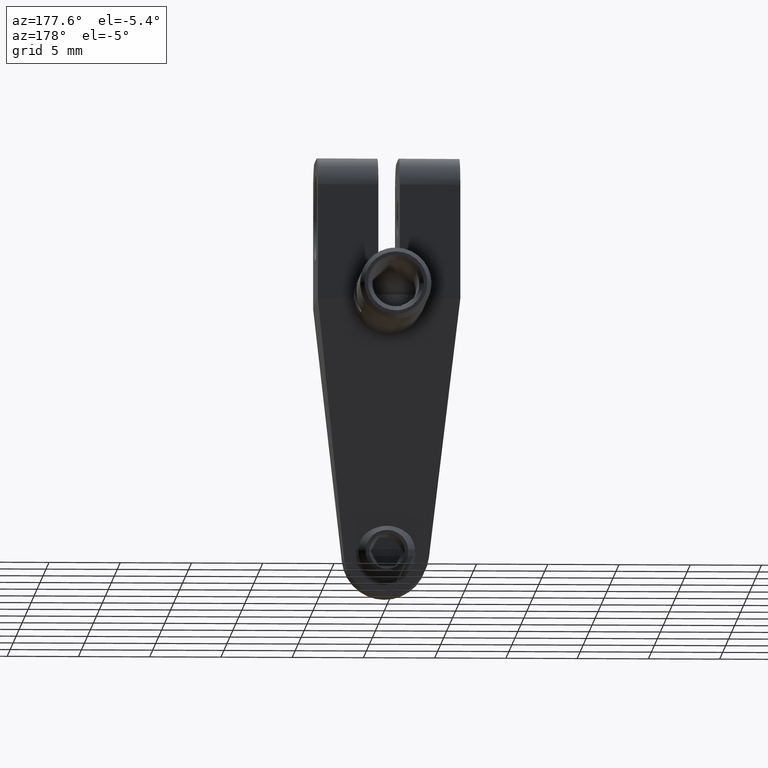
[diagram: clean part render]
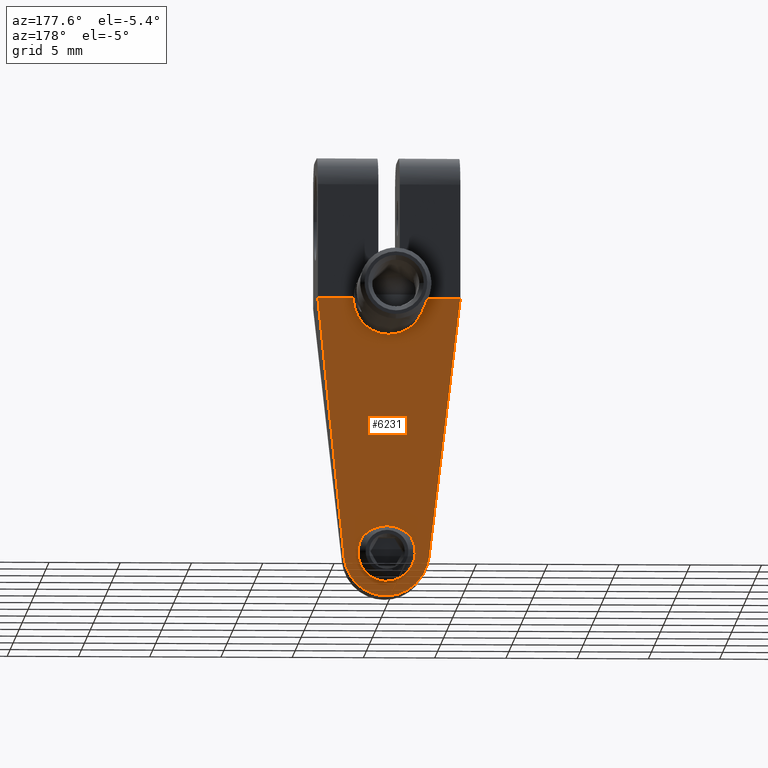
[diagram: same view with one face highlighted and labeled with its STEP entity id]
A machine part, auxiliary view. The second image highlights one B-rep face of the part: STEP entity #6231.
In plain terms, the highlighted face is a freeform B-spline surface patch.
Its self-contained STEP definition (entity closure, byte-faithful):
#13 = CARTESIAN_POINT ( 'NONE',  ( -1.650002698459773764, 3.698173282286332242, -17.63748954262627322 ) ) ;
#30 = CARTESIAN_POINT ( 'NONE',  ( -2.257798114924463473, 3.249878328457632026, -19.47548265169172765 ) ) ;
#31 = CARTESIAN_POINT ( 'NONE',  ( 1.554966777025011515, 3.868439532571668948, -16.93939791645637527 ) ) ;
#48 = CARTESIAN_POINT ( 'NONE',  ( -1.554966777022596114, 3.594975101580432764, -18.06060208352046104 ) ) ;
#67 = CARTESIAN_POINT ( 'NONE',  ( -2.778514296449944521, 3.455816833228162910, -18.63136104424455652 ) ) ;
#68 = CARTESIAN_POINT ( 'NONE',  ( 0.6959875102662069768, 3.365364406735724234, -19.00200593238379554 ) ) ;
#78 = CARTESIAN_POINT ( 'NONE',  ( -1.217117755943367463, 7.467352189865358980, -2.183856021552081028 ) ) ;
#102 = CARTESIAN_POINT ( 'NONE',  ( -1.610066939251764140, 3.114003149922428104, -20.03318436513310985 ) ) ;
#113 = CARTESIAN_POINT ( 'NONE',  ( -1.888896085261116964, 7.598014207017514288, -1.648141751228233920 ) ) ;
#139 = CARTESIAN_POINT ( 'NONE',  ( 0.4302082906070368584, 3.005791043420939612, -20.47717967444977560 ) ) ;
#152 = CARTESIAN_POINT ( 'NONE',  ( 1.794108201640456368, 7.574165017460754434, -1.745923428410947942 ) ) ;
#211 = CARTESIAN_POINT ( 'NONE',  ( 2.769651886371016225, 3.450524386114865560, -18.65285130259437807 ) ) ;
#225 = CARTESIAN_POINT ( 'NONE',  ( 0.5664384433873377311, 7.405973894542310809, -2.435507032376574177 ) ) ;
#357 = CARTESIAN_POINT ( 'NONE',  ( 1.187168415532884325, 3.059684159538712311, -20.25535750535290447 ) ) ;
#364 = CARTESIAN_POINT ( 'NONE',  ( 2.500000000000000000, 8.000000000000000000, -3.794707603699265026E-16 ) ) ;
#413 = CARTESIAN_POINT ( 'NONE',  ( 2.500000000000000000, 8.000000000000000000, -3.794707603699265026E-16 ) ) ;
#456 = CARTESIAN_POINT ( 'NONE',  ( 2.980964411255450308, 3.649410145557119733, -17.83741840321599881 ) ) ;
#501 = CARTESIAN_POINT ( 'NONE',  ( 0.9100071368993596366, 4.068291856063340539, -16.12000339014051420 ) ) ;
#535 = CARTESIAN_POINT ( 'NONE',  ( 0.4431266643689394935, 3.344050590701236558, -19.08939257812517809 ) ) ;
#579 = CARTESIAN_POINT ( 'NONE',  ( -2.980964411255444979, 3.649410145557119733, -17.83741840321599881 ) ) ;
#609 = CARTESIAN_POINT ( 'NONE',  ( 0.1952438315004140779, 3.331280487804888946, -19.14175000000020432 ) ) ;
#620 = CARTESIAN_POINT ( 'NONE',  ( -1.450989837395423088, 7.502433101516796654, -2.040024283781173509 ) ) ;
#643 = CARTESIAN_POINT ( 'NONE',  ( -2.442486894556359811, 3.306069004457071969, -19.24392363530558470 ) ) ;
#644 = CARTESIAN_POINT ( 'NONE',  ( 0.9699201604494728235, 3.406135472102803874, -18.83484456437875210 ) ) ;
#654 = CARTESIAN_POINT ( 'NONE',  ( 1.086650209739971729, 7.450817408549752940, -2.251648624946058330 ) ) ;
#679 = CARTESIAN_POINT ( 'NONE',  ( -0.8720052245454826823, 3.023169100693612776, -20.40500173398208972 ) ) ;
#691 = CARTESIAN_POINT ( 'NONE',  ( -2.357579147568734435, 7.793793315011544820, -0.8454474084526922839 ) ) ;
#720 = ORIENTED_EDGE ( 'NONE', *, *, #1878, .T. ) ;
#730 = CARTESIAN_POINT ( 'NONE',  ( -1.087353782327389995, 7.450387143508085508, -2.253412711616896935 ) ) ;
#750 = CARTESIAN_POINT ( 'NONE',  ( -2.797628835082795806, 3.467711876468869026, -18.58343434724637433 ) ) ;
#788 = CARTESIAN_POINT ( 'NONE',  ( 2.170977814872573131, 3.226654309287997346, -19.57076951178261481 ) ) ;
#823 = CARTESIAN_POINT ( 'NONE',  ( 1.270928543729015647, 3.068903899741630248, -20.21749407517311070 ) ) ;
#979 = CARTESIAN_POINT ( 'NONE',  ( -2.980964411255444979, 3.649410145557119733, -17.83741840321599881 ) ) ;
#989 = CARTESIAN_POINT ( 'NONE',  ( -0.5037841772528498518, 3.348460704999075332, -19.07131110950404107 ) ) ;
#1020 = CARTESIAN_POINT ( 'NONE',  ( -1.471806719709739530, 3.549738052707601010, -18.24607398389907686 ) ) ;
#1038 = CARTESIAN_POINT ( 'NONE',  ( 1.297004658268141597, 3.983688941694723873, -16.46687533905186029 ) ) ;
#1072 = CARTESIAN_POINT ( 'NONE',  ( 0.5451304641885953428, 4.111645708396050480, -15.94225259557638807 ) ) ;
#1087 = CARTESIAN_POINT ( 'NONE',  ( -0.6265093672091630594, 3.359025475509224812, -19.02799555041242030 ) ) ;
#1108 = CARTESIAN_POINT ( 'NONE',  ( 3.229004304530034759E-15, 3.329268292682944885, -19.14999999999999858 ) ) ;
#1125 = CARTESIAN_POINT ( 'NONE',  ( -0.3111499064906761980, 3.334634146341470817, -19.12800000000020972 ) ) ;
#1145 = CARTESIAN_POINT ( 'NONE',  ( -1.935648238522569287, 3.170726990155946279, -19.80078845349175154 ) ) ;
#1182 = CARTESIAN_POINT ( 'NONE',  ( 0.4525679256523953420, 3.344700362042700270, -19.08672851562517181 ) ) ;
#1191 = CARTESIAN_POINT ( 'NONE',  ( -0.8084598669897183898, 7.422863604742772736, -2.366259220554673082 ) ) ;
#1214 = CARTESIAN_POINT ( 'NONE',  ( -1.286623835207826083, 3.070707987761215119, -20.21009828578410250 ) ) ;
#1226 = CARTESIAN_POINT ( 'NONE',  ( -1.702626972736339450, 7.549394302739755425, -1.847483358767042283 ) ) ;
#1263 = CARTESIAN_POINT ( 'NONE',  ( 1.565346883233025732, 7.520694437436911350, -1.965152806508703609 ) ) ;
#1287 = CARTESIAN_POINT ( 'NONE',  ( -2.490766933421721951, 3.322905525924971570, -19.17432506934475711 ) ) ;
#1302 = CARTESIAN_POINT ( 'NONE',  ( -2.076896534857318510, 7.660339470220349334, -1.392608172096602148 ) ) ;
#1360 = CARTESIAN_POINT ( 'NONE',  ( 1.250845393842704434, 3.066635828557904286, -20.22679931473298254 ) ) ;
#1387 = CARTESIAN_POINT ( 'NONE',  ( -0.9191195357393260323, 4.066037218394757957, -16.12924740458171868 ) ) ;
#1394 = CARTESIAN_POINT ( 'NONE',  ( 1.934105654795496898, 3.171945185544779555, -19.79565193243638888 ) ) ;
#1406 = CARTESIAN_POINT ( 'NONE',  ( -6.001199999999999868, 1.916486672175859995, -24.94240464407929991 ) ) ;
#1421 = CARTESIAN_POINT ( 'NONE',  ( -1.346413172617549669, 3.965282074151194269, -16.54234349598032239 ) ) ;
#1430 = CARTESIAN_POINT ( 'NONE',  ( 2.884016463315636436, 3.518307912794309988, -18.37493709527043961 ) ) ;
#1436 = CARTESIAN_POINT ( 'NONE',  ( -2.011316705006861660, 7.637847821360908007, -1.484823932420302528 ) ) ;
#1441 = B_SPLINE_CURVE_WITH_KNOTS ( 'NONE', 1,
 ( #2068, #4257 ),
 .UNSPECIFIED., .F., .F.,
 ( 2, 2 ),
 ( 0.000000000000000000, 1.000000000000000000 ),
 .UNSPECIFIED. ) ;
#1458 = CARTESIAN_POINT ( 'NONE',  ( -0.8464906326959915628, 4.077562060802152999, -16.08199555071139386 ) ) ;
#1466 = CARTESIAN_POINT ( 'NONE',  ( 1.231805500857574120, 3.064514691784368416, -20.23550656117245339 ) ) ;
#1523 = CARTESIAN_POINT ( 'NONE',  ( -1.486972751174282292, 3.557198034965265876, -18.21548805664264847 ) ) ;
#1558 = CARTESIAN_POINT ( 'NONE',  ( -0.4667140654221472729, 3.345701219512201785, -19.08262500000022399 ) ) ;
#1570 = CARTESIAN_POINT ( 'NONE',  ( 2.394649204067321957, 7.824839262898168890, -0.7181590221175362387 ) ) ;
#1576 = CARTESIAN_POINT ( 'NONE',  ( 1.463071095837969127, 3.917802706255259615, -16.73700890435366517 ) ) ;
#1610 = CARTESIAN_POINT ( 'NONE',  ( 0.6265093671804372599, 4.104389158644102586, -15.97200444955938359 ) ) ;
#1619 = VERTEX_POINT ( 'NONE', #413 ) ;
#1656 = B_SPLINE_CURVE_WITH_KNOTS ( 'NONE', 3,
 ( #1108, #5560, #609, #2790, #4989, #1719, #535, #1182, #4444, #2112, #68, #2249, #3903, #5997, #644, #3868, #6632, #3764, #6102, #3830, #3254, #3360, #4299, #2755, #6033, #4949, #2824, #4403, #31, #5024, #6494, #4881, #1576, #5961, #1038, #3222, #7066, #3798, #2144, #5423, #6562, #501, #2686, #1610, #1072, #4333, #6527, #5455, #2719, #4914, #7102, #2179 ),
 .UNSPECIFIED., .F., .F.,
 ( 4, 1, 1, 1, 1, 2, 2, 1, 1, 1, 1, 2, 2, 1, 1, 1, 2, 2, 2, 1, 1, 1, 2, 2, 1, 1, 1, 1, 2, 2, 1, 1, 1, 1, 2, 2, 4 ),
 ( 0.000000000000000000, 0.06249999999999464317, 0.09374999999999177047, 0.1093749999999906186, 0.1171874999999903966, 0.1210937499999906602, 0.1249999999999909239, 0.1874999999999926170, 0.2187499999999939493, 0.2343749999999940603, 0.2421874999999941158, 0.2460937499999941713, 0.2499999999999941713, 0.3125000000000009437, 0.3437500000000036637, 0.3593750000000050515, 0.3671875000000049960, 0.3750000000000049405, 0.5000000000000017764, 0.5625000000000002220, 0.5937499999999994449, 0.6093749999999990008, 0.6171874999999981126, 0.6249999999999971134, 0.6874999999999873435, 0.7187499999999824585, 0.7343749999999800160, 0.7421874999999792388, 0.7460937499999783507, 0.7499999999999774625, 0.8124999999999773515, 0.8437499999999773515, 0.8593749999999777955, 0.8671874999999783507, 0.8710937499999786837, 0.8749999999999789058, 1.000000000000000000 ),
 .UNSPECIFIED. ) ;
#1663 = EDGE_CURVE ( 'NONE', #2018, #6055, #4396, .T. ) ;
#1665 = CARTESIAN_POINT ( 'NONE',  ( -0.9100071369212656691, 3.395122778088333959, -18.87999660983808070 ) ) ;
#1683 = CARTESIAN_POINT ( 'NONE',  ( -2.819792343273006985, 3.482108959804473436, -18.52517625671726975 ) ) ;
#1719 = CARTESIAN_POINT ( 'NONE',  ( 0.4289555855079272839, 3.343091653963431664, -19.09332421875016195 ) ) ;
#1728 = CARTESIAN_POINT ( 'NONE',  ( -2.487500000000043787, 7.927847032970048780, -0.2958271648228298356 ) ) ;
#1750 = CARTESIAN_POINT ( 'NONE',  ( -1.312787195529125039, 3.073769079498154699, -20.19755930872698713 ) ) ;
#1754 = ORIENTED_EDGE ( 'NONE', *, *, #2049, .T. ) ;
#1762 = CARTESIAN_POINT ( 'NONE',  ( -2.451041666666707197, 7.878303973914526637, -0.4989537069504609845 ) ) ;
#1785 = CARTESIAN_POINT ( 'NONE',  ( 1.018649613967863354, 3.043439138234691033, -20.32231344584054966 ) ) ;
#1797 = CARTESIAN_POINT ( 'NONE',  ( -2.022491344695902082, 7.641566613675208508, -1.469576883931683620 ) ) ;
#1832 = CARTESIAN_POINT ( 'NONE',  ( 0.5142133848333595436, 7.403142301179780560, -2.447116565162950064 ) ) ;
#1854 = CARTESIAN_POINT ( 'NONE',  ( 2.143365280185639765, 3.219731541161699795, -19.59920908489705127 ) ) ;
#1864 = FACE_BOUND ( 'NONE', #2938, .T. ) ;
#1866 = CARTESIAN_POINT ( 'NONE',  ( 0.2591960004360183145, 7.392588542322034328, -2.490386976479714409 ) ) ;
#1875 = B_SPLINE_CURVE_WITH_KNOTS ( 'NONE', 3,
 ( #5499, #4854, #7038, #579 ),
 .UNSPECIFIED., .F., .F.,
 ( 4, 4 ),
 ( 0.000000000000000000, 1.000000000000000000 ),
 .UNSPECIFIED. ) ;
#1878 = EDGE_CURVE ( 'NONE', #6055, #2018, #1656, .T. ) ;
#1894 = CARTESIAN_POINT ( 'NONE',  ( 1.854608119777483077, 3.156235803442178245, -19.86019471843959039 ) ) ;
#1941 = CARTESIAN_POINT ( 'NONE',  ( 6.001200000000070034, 1.916486672175859995, -24.94240464407929991 ) ) ;
#1954 = CARTESIAN_POINT ( 'NONE',  ( -0.9838892886988779285, 4.054776313063936044, -16.17541711643809066 ) ) ;
#1974 = CARTESIAN_POINT ( 'NONE',  ( -6.001200000000070034, 8.553359054507421178, 2.268772123480434999 ) ) ;
#1988 = ORIENTED_EDGE ( 'NONE', *, *, #3364, .F. ) ;
#1989 = CARTESIAN_POINT ( 'NONE',  ( -1.403348860497512840, 3.943646728812012725, -16.63104841187095673 ) ) ;
#1997 = CARTESIAN_POINT ( 'NONE',  ( 1.263518113950707678, 3.068061232777650194, -20.22095032623607835 ) ) ;
#2018 = VERTEX_POINT ( 'NONE', #5683 ) ;
#2049 = EDGE_CURVE ( 'NONE', #4484, #1619, #6970, .T. ) ;
#2060 = CARTESIAN_POINT ( 'NONE',  ( -0.3293078736253231553, 4.126265243902441426, -15.88231250000020012 ) ) ;
#2068 = CARTESIAN_POINT ( 'NONE',  ( 5.000000000000060396, 8.000000000000000000, 2.358139725155969777E-15 ) ) ;
#2086 = ORIENTED_EDGE ( 'NONE', *, *, #3994, .F. ) ;
#2112 = CARTESIAN_POINT ( 'NONE',  ( 0.5579928630092730879, 3.352194295138192448, -19.05600338993366449 ) ) ;
#2123 = CARTESIAN_POINT ( 'NONE',  ( -1.152312317245160811, 3.442900438636290250, -18.68410820159145658 ) ) ;
#2144 = CARTESIAN_POINT ( 'NONE',  ( 1.014249392098104607, 4.049145471440801280, -16.19850356709293848 ) ) ;
#2179 = CARTESIAN_POINT ( 'NONE',  ( 2.597875318126019876E-15, 4.134146341463419638, -15.84999999999999964 ) ) ;
#2197 = CARTESIAN_POINT ( 'NONE',  ( -1.585288719906617905, 3.861913279008320821, -16.96615555606611281 ) ) ;
#2248 = CARTESIAN_POINT ( 'NONE',  ( -2.627509396974621492, 3.375394875069217093, -18.95785177115592646 ) ) ;
#2249 = CARTESIAN_POINT ( 'NONE',  ( 0.8464906326996413100, 3.385852573344477534, -18.91800444928789560 ) ) ;
#2283 = CARTESIAN_POINT ( 'NONE',  ( -1.349418517908175241, 3.078168255689788690, -20.17955696353930151 ) ) ;
#2286 = B_SPLINE_CURVE_WITH_KNOTS ( 'NONE', 1,
 ( #6023, #4430 ),
 .UNSPECIFIED., .F., .F.,
 ( 2, 2 ),
 ( 0.000000000000000000, 1.000000000000000000 ),
 .UNSPECIFIED. ) ;
#2296 = CARTESIAN_POINT ( 'NONE',  ( -0.4134829591157157536, 7.396498469412281729, -2.474356275409689943 ) ) ;
#2335 = CARTESIAN_POINT ( 'NONE',  ( -2.408170572916708885, 7.836242811427522881, -0.6714044731471935368 ) ) ;
#2358 = CARTESIAN_POINT ( 'NONE',  ( -2.787773194951143729, 3.461536882818403438, -18.60833226464877654 ) ) ;
#2373 = CARTESIAN_POINT ( 'NONE',  ( 1.018566657752070670, 7.442899257430138249, -2.284113044536490555 ) ) ;
#2395 = CARTESIAN_POINT ( 'NONE',  ( 2.725835378829076561, 3.426092220144699940, -18.75315304809684847 ) ) ;
#2409 = CARTESIAN_POINT ( 'NONE',  ( 1.994318393701234093, 7.632298704508047038, -1.507575311517042937 ) ) ;
#2434 = CARTESIAN_POINT ( 'NONE',  ( 1.611558985082184536, 3.112776101002193485, -20.03835363674532033 ) ) ;
#2461 = CARTESIAN_POINT ( 'NONE',  ( -0.07856790371452850030, 4.134146341463418750, -15.85000000000020748 ) ) ;
#2494 = CARTESIAN_POINT ( 'NONE',  ( -0.4560004460620847300, 4.118475558080273657, -15.91425021187108868 ) ) ;
#2506 = CARTESIAN_POINT ( 'NONE',  ( 2.229558290351581817, 3.242132496345171422, -19.50725706611246579 ) ) ;
#2532 = CARTESIAN_POINT ( 'NONE',  ( -0.4289555855079065783, 4.120322980182929307, -15.90667578125020931 ) ) ;
#2542 = CARTESIAN_POINT ( 'NONE',  ( 2.609650862635581436, 3.370267939225878973, -18.98265166527859904 ) ) ;
#2601 = CARTESIAN_POINT ( 'NONE',  ( -0.1952438315004335623, 4.132134146341466696, -15.85825000000020601 ) ) ;
#2652 = CARTESIAN_POINT ( 'NONE',  ( 5.000000000000060396, 8.000000000000000000, 2.358139725155969777E-15 ) ) ;
#2667 = CARTESIAN_POINT ( 'NONE',  ( -1.014249392100794456, 3.414269162705667604, -18.80149643290700467 ) ) ;
#2686 = CARTESIAN_POINT ( 'NONE',  ( 0.7840124895739040145, 4.087315626159618631, -16.04200593274577713 ) ) ;
#2692 = B_SPLINE_CURVE_WITH_KNOTS ( 'NONE', 3,
 ( #2652, #4267, #3732, #5929 ),
 .UNSPECIFIED., .F., .F.,
 ( 4, 4 ),
 ( 0.000000000000000000, 1.000000000000000000 ),
 .UNSPECIFIED. ) ;
#2699 = CARTESIAN_POINT ( 'NONE',  ( -0.7840124896122271370, 3.376099007996041568, -18.95799406721649305 ) ) ;
#2719 = CARTESIAN_POINT ( 'NONE',  ( 0.4667140654247765030, 4.117713414634151192, -15.91737500000019168 ) ) ;
#2755 = CARTESIAN_POINT ( 'NONE',  ( 1.447794455006059078, 3.538625677499887878, -18.29163472225069142 ) ) ;
#2790 = CARTESIAN_POINT ( 'NONE',  ( 0.3293078736253176597, 3.337149390243916436, -19.11768750000019423 ) ) ;
#2801 = CARTESIAN_POINT ( 'NONE',  ( -1.316590477042792529, 7.481393006013925984, -2.126288675342949741 ) ) ;
#2823 = CARTESIAN_POINT ( 'NONE',  ( -2.281382393248732932, 3.256486420253847491, -19.44834155887152249 ) ) ;
#2824 = CARTESIAN_POINT ( 'NONE',  ( 1.650002698461631834, 3.765241351864407449, -17.36251045735615506 ) ) ;
#2833 = CARTESIAN_POINT ( 'NONE',  ( 1.131765618449448896, 7.456269024688795710, -2.229296998775974536 ) ) ;
#2859 = CARTESIAN_POINT ( 'NONE',  ( -0.4247181720879956712, 3.000001231722470685, -20.49999999999996447 ) ) ;
#2871 = CARTESIAN_POINT ( 'NONE',  ( -0.7127467767310422531, 7.415416418597385650, -2.396792683750764041 ) ) ;
#2894 = CARTESIAN_POINT ( 'NONE',  ( -2.965922950406027603, 3.616999014553715419, -17.97030404032978979 ) ) ;
#2909 = CARTESIAN_POINT ( 'NONE',  ( 2.209084976365060626, 7.710270420116265733, -1.187891277523341449 ) ) ;
#2921 = ORIENTED_EDGE ( 'NONE', *, *, #5128, .T. ) ;
#2938 = EDGE_LOOP ( 'NONE', ( #720, #6446 ) ) ;
#2948 = CARTESIAN_POINT ( 'NONE',  ( -2.148489297850615376, 7.687178929204683264, -1.282566390260833744 ) ) ;
#2968 = CARTESIAN_POINT ( 'NONE',  ( 2.740803681061361630, 3.434098834575842307, -18.72025789630142256 ) ) ;
#3038 = CARTESIAN_POINT ( 'NONE',  ( 2.049680221912722367, 3.197343480632587998, -19.69123403761507873 ) ) ;
#3135 = VERTEX_POINT ( 'NONE', #6702 ) ;
#3166 = ORIENTED_EDGE ( 'NONE', *, *, #3721, .F. ) ;
#3173 = CARTESIAN_POINT ( 'NONE',  ( 3.229004304530034759E-15, 3.329268292682944885, -19.14999999999999858 ) ) ;
#3222 = CARTESIAN_POINT ( 'NONE',  ( 1.152312317230510974, 4.020514195510644484, -16.31589179840658232 ) ) ;
#3254 = CARTESIAN_POINT ( 'NONE',  ( 1.403348860483087490, 3.519767905332008340, -18.36895158813901219 ) ) ;
#3267 = CARTESIAN_POINT ( 'NONE',  ( -1.297004658287677969, 3.479725692452399599, -18.53312466094540412 ) ) ;
#3360 = CARTESIAN_POINT ( 'NONE',  ( 1.426334878189993161, 3.529336230652775797, -18.32972145432386313 ) ) ;
#3364 = EDGE_CURVE ( 'NONE', #3135, #4721, #1875, .T. ) ;
#3373 = CARTESIAN_POINT ( 'NONE',  ( 0.1041559562931015648, 7.390243573366540808, -2.500001349197220613 ) ) ;
#3398 = CARTESIAN_POINT ( 'NONE',  ( -1.282474697861880397, 3.070227583207541855, -20.21206698624250109 ) ) ;
#3411 = CARTESIAN_POINT ( 'NONE',  ( -0.9503804312900590023, 7.435070780026684645, -2.316209801890636744 ) ) ;
#3434 = CARTESIAN_POINT ( 'NONE',  ( -2.980964411255444979, 3.649410145557119733, -17.83741840321599881 ) ) ;
#3471 = CARTESIAN_POINT ( 'NONE',  ( -2.247625449617347559, 3.247069489718824808, -19.48700932494139337 ) ) ;
#3510 = CARTESIAN_POINT ( 'NONE',  ( 2.757757858413962371, 3.443634463986217309, -18.68111548787192788 ) ) ;
#3545 = CARTESIAN_POINT ( 'NONE',  ( 2.232547720431074190, 3.242943903109894332, -19.50393001132437831 ) ) ;
#3579 = CARTESIAN_POINT ( 'NONE',  ( 2.674359652713768742, 3.400070634199508390, -18.86012273133309591 ) ) ;
#3608 = CARTESIAN_POINT ( 'NONE',  ( -1.426334878198701306, 3.934078403492175191, -16.67027854568229372 ) ) ;
#3621 = VERTEX_POINT ( 'NONE', #4298 ) ;
#3622 = CARTESIAN_POINT ( 'NONE',  ( 2.389156382544149970, 7.820427565929328750, -0.7362469796897829211 ) ) ;
#3713 = CARTESIAN_POINT ( 'NONE',  ( -0.4739852531758428911, 3.346227235889971396, -19.08046833285136401 ) ) ;
#3721 = EDGE_CURVE ( 'NONE', #4721, #5439, #6921, .T. ) ;
#3732 = CARTESIAN_POINT ( 'NONE',  ( 3.653976274170291472, 5.099606763704748857, -11.89161226881069133 ) ) ;
#3746 = CARTESIAN_POINT ( 'NONE',  ( -0.1571499064906746179, 3.329268292682936448, -19.15000000000021529 ) ) ;
#3759 = CARTESIAN_POINT ( 'NONE',  ( 2.397916666666652041, 7.827526186134601716, -0.7071426368481554814 ) ) ;
#3764 = CARTESIAN_POINT ( 'NONE',  ( 1.087771380799041898, 3.427640521214832425, -18.74667386301944205 ) ) ;
#3798 = CARTESIAN_POINT ( 'NONE',  ( 1.032229952075693680, 4.045717536886181520, -16.21255809876686982 ) ) ;
#3830 = CARTESIAN_POINT ( 'NONE',  ( 1.346413172592869856, 3.498132559991161905, -18.45765650403647484 ) ) ;
#3847 = CARTESIAN_POINT ( 'NONE',  ( -0.4859235895338055999, 3.347111479130124856, -19.07684293556674149 ) ) ;
#3867 = CARTESIAN_POINT ( 'NONE',  ( -2.240829431315367604, 3.245202086249050044, -19.49467031835400732 ) ) ;
#3868 = CARTESIAN_POINT ( 'NONE',  ( 0.9799834968155741732, 3.407934349482762304, -18.82746916712092755 ) ) ;
#3903 = CARTESIAN_POINT ( 'NONE',  ( 0.9191195357414509992, 3.397377415751760221, -18.87075259541803618 ) ) ;
#3913 = CARTESIAN_POINT ( 'NONE',  ( -2.275763508245251643, 7.742796837855567382, -1.054532964792206151 ) ) ;
#3936 = CARTESIAN_POINT ( 'NONE',  ( -1.485291656742404820, 3.095940587761808249, -20.10696055562187112 ) ) ;
#3948 = CARTESIAN_POINT ( 'NONE',  ( -2.402651303276998718, 7.831485478787392651, -0.6909095369717169755 ) ) ;
#3987 = CARTESIAN_POINT ( 'NONE',  ( -0.2083119125862698817, 7.390244560583989930, -2.499997301605674238 ) ) ;
#3994 = EDGE_CURVE ( 'NONE', #3621, #1619, #1441, .T. ) ;
#4011 = CARTESIAN_POINT ( 'NONE',  ( -2.837361374578502460, 3.494430056637016779, -18.47500098612875519 ) ) ;
#4025 = CARTESIAN_POINT ( 'NONE',  ( 1.899912790826210562, 7.603341836464735159, -1.626298470494629500 ) ) ;
#4049 = CARTESIAN_POINT ( 'NONE',  ( 2.564286113503751352, 3.351585482710630171, -19.05940348455546030 ) ) ;
#4085 = CARTESIAN_POINT ( 'NONE',  ( 2.225094549797371535, 3.240926158841640703, -19.51220410097881697 ) ) ;
#4136 = CARTESIAN_POINT ( 'NONE',  ( 6.001199999999999868, 8.553359054507421178, 2.268772123480439884 ) ) ;
#4149 = CARTESIAN_POINT ( 'NONE',  ( -1.087771380817829536, 4.035774112928485202, -16.25332613699344009 ) ) ;
#4169 = EDGE_CURVE ( 'NONE', #4484, #3135, #2286, .T. ) ;
#4183 = CARTESIAN_POINT ( 'NONE',  ( -1.441344447468333234, 3.927633734510020513, -16.69670168850914749 ) ) ;
#4257 = CARTESIAN_POINT ( 'NONE',  ( 2.500000000000000000, 8.000000000000000000, -3.794707603699265026E-16 ) ) ;
#4267 = CARTESIAN_POINT ( 'NONE',  ( 4.326988137085149511, 6.549803381852377981, -5.945806134405343890 ) ) ;
#4298 = CARTESIAN_POINT ( 'NONE',  ( 5.000000000000060396, 8.000000000000000000, 2.358139725155969777E-15 ) ) ;
#4299 = CARTESIAN_POINT ( 'NONE',  ( 1.441344447463727807, 3.535780899635598384, -18.30329831149428799 ) ) ;
#4312 = CARTESIAN_POINT ( 'NONE',  ( -1.073358655647903559, 3.425868154006037170, -18.75394056857550140 ) ) ;
#4333 = CARTESIAN_POINT ( 'NONE',  ( 0.5037841772438962362, 4.114953929149455902, -15.92868889048743419 ) ) ;
#4383 = CARTESIAN_POINT ( 'NONE',  ( -1.508963463067121591, 3.568434184673716203, -18.16941984283799982 ) ) ;
#4388 = CARTESIAN_POINT ( 'NONE',  ( 3.229004304530034759E-15, 3.329268292682944885, -19.14999999999999858 ) ) ;
#4396 = B_SPLINE_CURVE_WITH_KNOTS ( 'NONE', 3,
 ( #6306, #2461, #2601, #2060, #5303, #2532, #4727, #5199, #2494, #4655, #6909, #1458, #1387, #5772, #4690, #6874, #1954, #4149, #6342, #1421, #1989, #3608, #4183, #4861, #2197, #6580, #13, #5945, #48, #4383, #1523, #1020, #6475, #7047, #3267, #2123, #4312, #5507, #2667, #6509, #5372, #1665, #2699, #1087, #5435, #989, #3847, #3713, #1558, #1125, #3746, #3173 ),
 .UNSPECIFIED., .F., .F.,
 ( 4, 1, 1, 1, 1, 2, 2, 1, 1, 1, 1, 2, 2, 1, 1, 1, 2, 2, 2, 1, 1, 1, 2, 2, 1, 1, 1, 1, 2, 2, 1, 1, 1, 1, 2, 2, 4 ),
 ( 0.000000000000000000, 0.06249999999999227007, 0.09374999999998838429, 0.1093749999999866912, 0.1171874999999858863, 0.1210937499999855116, 0.1249999999999851508, 0.1874999999999775735, 0.2187499999999733546, 0.2343749999999711897, 0.2421874999999700795, 0.2460937499999695521, 0.2499999999999689970, 0.3124999999999703570, 0.3437499999999716338, 0.3593749999999722999, 0.3671874999999734102, 0.3749999999999744649, 0.4999999999999874545, 0.5624999999999931166, 0.5937499999999953371, 0.6093749999999970024, 0.6171874999999977796, 0.6249999999999986677, 0.6875000000000058842, 0.7187500000000088818, 0.7343750000000098810, 0.7421875000000108802, 0.7460937500000114353, 0.7500000000000118794, 0.8125000000000072164, 0.8437500000000047740, 0.8593750000000036637, 0.8671875000000034417, 0.8710937500000037748, 0.8750000000000039968, 1.000000000000000000 ),
 .UNSPECIFIED. ) ;
#4402 = CARTESIAN_POINT ( 'NONE',  ( -2.941636722326090858, 3.584450921329790152, -18.10505528089631611 ) ) ;
#4403 = CARTESIAN_POINT ( 'NONE',  ( 1.625740016425514023, 3.814064761745489474, -17.16233447684372493 ) ) ;
#4430 = CARTESIAN_POINT ( 'NONE',  ( -5.000000000000060396, 8.000000000000000000, 0.000000000000000000 ) ) ;
#4444 = CARTESIAN_POINT ( 'NONE',  ( 0.4560004460619446753, 3.344939076066077543, -19.08574978812932699 ) ) ;
#4456 = CARTESIAN_POINT ( 'NONE',  ( -2.500000000000043521, 7.970964855076960731, -0.1190440941844749245 ) ) ;
#4484 = VERTEX_POINT ( 'NONE', #5434 ) ;
#4491 = CARTESIAN_POINT ( 'NONE',  ( -2.427343750000042988, 7.853722711070739493, -0.5997368846099998541 ) ) ;
#4516 = CARTESIAN_POINT ( 'NONE',  ( 0.7533988746524630242, 3.023166945059308830, -20.40595244842180023 ) ) ;
#4529 = CARTESIAN_POINT ( 'NONE',  ( -2.414127604166708796, 7.841479646319841734, -0.6499334500886922994 ) ) ;
#4553 = CARTESIAN_POINT ( 'NONE',  ( -2.870600952506949355, 3.519046569885751818, -18.37443475632775858 ) ) ;
#4571 = CARTESIAN_POINT ( 'NONE',  ( 2.360224677159703965, 7.798548186849646235, -0.8259524339164712181 ) ) ;
#4591 = CARTESIAN_POINT ( 'NONE',  ( 2.327736648376163231, 3.268847261338898136, -19.39772532772177982 ) ) ;
#4604 = CARTESIAN_POINT ( 'NONE',  ( 2.090905700780029353, 7.663708532749369695, -1.378795015727634743 ) ) ;
#4627 = CARTESIAN_POINT ( 'NONE',  ( 2.218389101660890539, 3.239120235051057950, -19.51961070271185861 ) ) ;
#4655 = CARTESIAN_POINT ( 'NONE',  ( -0.5579928630064667772, 4.111220339008374580, -15.94399661006588254 ) ) ;
#4675 = FACE_OUTER_BOUND ( 'NONE', #6335, .T. ) ;
#4690 = CARTESIAN_POINT ( 'NONE',  ( -0.9699201604488130180, 4.057279162043609055, -16.16515543562141843 ) ) ;
#4721 = VERTEX_POINT ( 'NONE', #979 ) ;
#4727 = CARTESIAN_POINT ( 'NONE',  ( -0.4431266643689138474, 4.119364043445127521, -15.91060742187520560 ) ) ;
#4735 = CARTESIAN_POINT ( 'NONE',  ( 2.695371623411505713, 3.410301367557510233, -18.81805011643323411 ) ) ;
#4854 = CARTESIAN_POINT ( 'NONE',  ( -4.326988137085195696, 6.549803381852372652, -5.945806134405324350 ) ) ;
#4861 = CARTESIAN_POINT ( 'NONE',  ( -1.447794455005887881, 3.924788956647350169, -16.70836527774608626 ) ) ;
#4881 = CARTESIAN_POINT ( 'NONE',  ( 1.471806719710131217, 3.913676581439811564, -16.75392601609699028 ) ) ;
#4914 = CARTESIAN_POINT ( 'NONE',  ( 0.3111499064076325705, 4.128780487804879051, -15.87200000000019529 ) ) ;
#4949 = CARTESIAN_POINT ( 'NONE',  ( 1.649994603076692767, 3.664639247490730334, -17.77497908528823700 ) ) ;
#4989 = CARTESIAN_POINT ( 'NONE',  ( 0.3958254262814451252, 3.340964176829284149, -19.10204687500019105 ) ) ;
#5023 = CARTESIAN_POINT ( 'NONE',  ( -1.692600741283725618, 3.127267287715964628, -19.97895000622446204 ) ) ;
#5024 = CARTESIAN_POINT ( 'NONE',  ( 1.508963463068506039, 3.894980449475990980, -16.83058015714866329 ) ) ;
#5034 = CARTESIAN_POINT ( 'NONE',  ( 1.156046651197582653, 7.459323219625590973, -2.216774799535118134 ) ) ;
#5041 = ORIENTED_EDGE ( 'NONE', *, *, #4169, .F. ) ;
#5060 = CARTESIAN_POINT ( 'NONE',  ( 0.2123590860439010242, 2.999999384138765102, -20.50000000000002487 ) ) ;
#5071 = CARTESIAN_POINT ( 'NONE',  ( 1.339862084536491471, 7.483233468246383246, -2.118742780189860397 ) ) ;
#5096 = CARTESIAN_POINT ( 'NONE',  ( -2.327923987853193655, 3.269919142802274692, -19.39308374174481742 ) ) ;
#5109 = CARTESIAN_POINT ( 'NONE',  ( 2.315147065607124244, 7.768475172810776819, -0.9492517914758411557 ) ) ;
#5128 = EDGE_CURVE ( 'NONE', #3621, #5439, #2692, .T. ) ;
#5148 = CARTESIAN_POINT ( 'NONE',  ( 0.4124452091337770243, 7.398451705123838984, -2.466348008992311325 ) ) ;
#5170 = CARTESIAN_POINT ( 'NONE',  ( 2.772641323965374216, 3.452284061329396359, -18.64563535577254072 ) ) ;
#5199 = CARTESIAN_POINT ( 'NONE',  ( -0.4525679256523661431, 4.118714272103662033, -15.91327148437519590 ) ) ;
#5207 = CARTESIAN_POINT ( 'NONE',  ( 2.980964411255450308, 3.649410145557119733, -17.83741840321599881 ) ) ;
#5303 = CARTESIAN_POINT ( 'NONE',  ( -0.3958254262814334679, 4.122450457317077266, -15.89795312500019620 ) ) ;
#5372 = CARTESIAN_POINT ( 'NONE',  ( -0.9949995539424054680, 3.410670680028027313, -18.81625021188534319 ) ) ;
#5386 = CARTESIAN_POINT ( 'NONE',  ( 2.466666666666652130, 7.885015702229450696, -0.4714356208592796471 ) ) ;
#5423 = CARTESIAN_POINT ( 'NONE',  ( 1.002183691505042162, 4.051414328497713768, -16.18920125315958813 ) ) ;
#5434 = CARTESIAN_POINT ( 'NONE',  ( -2.500000000000000000, 8.000000000000000000, -9.215718466126789661E-16 ) ) ;
#5435 = CARTESIAN_POINT ( 'NONE',  ( -0.5451304642053365068, 3.351768925754367690, -19.05774740440733339 ) ) ;
#5439 = VERTEX_POINT ( 'NONE', #456 ) ;
#5455 = CARTESIAN_POINT ( 'NONE',  ( 0.4739852531731807983, 4.117187398257034836, -15.91953166714637646 ) ) ;
#5499 = CARTESIAN_POINT ( 'NONE',  ( -5.000000000000060396, 8.000000000000000000, 0.000000000000000000 ) ) ;
#5507 = CARTESIAN_POINT ( 'NONE',  ( -1.032229952080277569, 3.417697097260361971, -18.78744190123276070 ) ) ;
#5527 = CARTESIAN_POINT ( 'NONE',  ( -1.422658516080259616, 3.087367717813920276, -20.14195898681845165 ) ) ;
#5559 = CARTESIAN_POINT ( 'NONE',  ( -2.890227118292920228, 3.535423338163110163, -18.30710397685413682 ) ) ;
#5560 = CARTESIAN_POINT ( 'NONE',  ( 0.07856790371453098443, 3.329268292682936004, -19.15000000000021174 ) ) ;
#5572 = CARTESIAN_POINT ( 'NONE',  ( 0.7132769593789939355, 7.415069096468860366, -2.398216704477716288 ) ) ;
#5607 = CARTESIAN_POINT ( 'NONE',  ( -0.6658600294519416707, 7.412132418294212322, -2.410257084993770338 ) ) ;
#5632 = CARTESIAN_POINT ( 'NONE',  ( -2.366676137792857126, 3.281804114625495039, -19.34407077623565741 ) ) ;
#5639 = B_SPLINE_SURFACE_WITH_KNOTS ( 'NONE', 1, 1, ( 
 ( #1941, #4136 ),
 ( #1406, #1974 ) ),
 .UNSPECIFIED., .F., .F., .F.,
 ( 2, 2 ),
 ( 2, 2 ),
 ( -1.001200000000000090, 11.00120000000000076 ),
 ( -25.67357949018409968, 2.335280109855619735 ),
 .UNSPECIFIED. ) ;
#5645 = CARTESIAN_POINT ( 'NONE',  ( 1.971965182915798920, 7.625185192303600701, -1.536740711555272476 ) ) ;
#5670 = CARTESIAN_POINT ( 'NONE',  ( -2.091607762027592354, 3.204589843861765708, -19.66118027154200121 ) ) ;
#5683 = CARTESIAN_POINT ( 'NONE',  ( 2.597875318126019876E-15, 4.134146341463419638, -15.84999999999999964 ) ) ;
#5707 = CARTESIAN_POINT ( 'NONE',  ( 1.070944613500251386, 3.048145207823399261, -20.30288983103675093 ) ) ;
#5743 = CARTESIAN_POINT ( 'NONE',  ( 2.424899010868955429, 3.299096133566385092, -19.27456326607228476 ) ) ;
#5772 = CARTESIAN_POINT ( 'NONE',  ( -0.9547783227174928555, 4.059954607415317440, -16.15418610959742551 ) ) ;
#5816 = CARTESIAN_POINT ( 'NONE',  ( 1.443559435968190030, 3.088694224532625654, -20.13635162777713816 ) ) ;
#5929 = CARTESIAN_POINT ( 'NONE',  ( 2.980964411255450308, 3.649410145557119733, -17.83741840321599881 ) ) ;
#5945 = CARTESIAN_POINT ( 'NONE',  ( -1.625740016422261736, 3.649349872408532480, -17.83766552312525278 ) ) ;
#5956 = CARTESIAN_POINT ( 'NONE',  ( 2.499999999999985789, 7.941926271335140619, -0.2381022875259446170 ) ) ;
#5961 = CARTESIAN_POINT ( 'NONE',  ( 1.398372409766661217, 3.947391836328117520, -16.61569347105493577 ) ) ;
#5997 = CARTESIAN_POINT ( 'NONE',  ( 0.9547783227186245059, 3.403460026731131460, -18.84581389040261357 ) ) ;
#6023 = CARTESIAN_POINT ( 'NONE',  ( -2.500000000000000000, 8.000000000000000000, -9.215718466126789661E-16 ) ) ;
#6033 = CARTESIAN_POINT ( 'NONE',  ( 1.585288719902784083, 3.601501355123870152, -18.03384444399237196 ) ) ;
#6055 = VERTEX_POINT ( 'NONE', #4388 ) ;
#6070 = CARTESIAN_POINT ( 'NONE',  ( -2.238462303084155725, 3.244553434202528841, -19.49733096253924813 ) ) ;
#6102 = CARTESIAN_POINT ( 'NONE',  ( 1.219335210515984702, 3.457624857606579116, -18.62373808381326512 ) ) ;
#6112 = CARTESIAN_POINT ( 'NONE',  ( -1.257152009888342192, 7.472898787607395121, -2.161114970809722369 ) ) ;
#6133 = CARTESIAN_POINT ( 'NONE',  ( -1.297088860427670465, 3.071926694316835960, -20.20510519205618039 ) ) ;
#6147 = CARTESIAN_POINT ( 'NONE',  ( -1.198749789712378444, 7.464878106518966661, -2.193999763272281633 ) ) ;
#6183 = CARTESIAN_POINT ( 'NONE',  ( 1.950671067914593770, 7.618540628214739208, -1.563983424319608684 ) ) ;
#6207 = CARTESIAN_POINT ( 'NONE',  ( -2.707802646810971936, 3.413027487486108846, -18.80322633362755980 ) ) ;
#6222 = CARTESIAN_POINT ( 'NONE',  ( 1.986059163511624481, 7.629643967517510283, -1.518459733178246118 ) ) ;
#6231 = ADVANCED_FACE ( 'NONE', ( #1864, #4675 ), #5639, .T. ) ;
#6258 = CARTESIAN_POINT ( 'NONE',  ( -2.039111238911676782, 7.647162114563458957, -1.446635330289858468 ) ) ;
#6281 = CARTESIAN_POINT ( 'NONE',  ( 1.148564240079220866, 3.055747338001159275, -20.27156609680162092 ) ) ;
#6306 = CARTESIAN_POINT ( 'NONE',  ( 2.597875318126019876E-15, 4.134146341463419638, -15.84999999999999964 ) ) ;
#6314 = CARTESIAN_POINT ( 'NONE',  ( 2.951081138832064354, 3.583678023683215752, -18.10142585134832771 ) ) ;
#6335 = EDGE_LOOP ( 'NONE', ( #3166, #1988, #5041, #1754, #2086, #2921 ) ) ;
#6342 = CARTESIAN_POINT ( 'NONE',  ( -1.219335210548862847, 4.005789776534448343, -16.37626191620898908 ) ) ;
#6384 = CARTESIAN_POINT ( 'NONE',  ( 2.764909826480451471, 3.447762857856528029, -18.66417840084925217 ) ) ;
#6446 = ORIENTED_EDGE ( 'NONE', *, *, #1663, .T. ) ;
#6475 = CARTESIAN_POINT ( 'NONE',  ( -1.463071095836641522, 3.545611927891039183, -18.26299109564697787 ) ) ;
#6494 = CARTESIAN_POINT ( 'NONE',  ( 1.486972751175087426, 3.906216599183104599, -16.78451194334948582 ) ) ;
#6509 = CARTESIAN_POINT ( 'NONE',  ( -1.002183691506425278, 3.412000305648705378, -18.81079874684056463 ) ) ;
#6527 = CARTESIAN_POINT ( 'NONE',  ( 0.4859235895285757834, 4.116303155017505766, -15.92315706442844281 ) ) ;
#6562 = CARTESIAN_POINT ( 'NONE',  ( 0.9949995539437620495, 4.052743954118007252, -16.18374978811639053 ) ) ;
#6580 = CARTESIAN_POINT ( 'NONE',  ( -1.649994603080435107, 3.798775386646880747, -17.22502091474800778 ) ) ;
#6632 = CARTESIAN_POINT ( 'NONE',  ( 0.9838892887000391108, 3.408638321082620770, -18.82458288356150433 ) ) ;
#6643 = CARTESIAN_POINT ( 'NONE',  ( -2.500000000000000000, 8.000000000000000000, -9.215718466126789661E-16 ) ) ;
#6666 = CARTESIAN_POINT ( 'NONE',  ( -2.781123462044632344, 3.457419150367410765, -18.62491425638334164 ) ) ;
#6681 = CARTESIAN_POINT ( 'NONE',  ( 0.8568319639811546873, 7.426238483107004740, -2.352422219261320002 ) ) ;
#6702 = CARTESIAN_POINT ( 'NONE',  ( -5.000000000000060396, 8.000000000000000000, 0.000000000000000000 ) ) ;
#6705 = CARTESIAN_POINT ( 'NONE',  ( 0.8605060051863944182, 3.030406981057950144, -20.37609636581841954 ) ) ;
#6717 = CARTESIAN_POINT ( 'NONE',  ( -2.006943994671220644, 7.636404599866286169, -1.490741140548256904 ) ) ;
#6754 = CARTESIAN_POINT ( 'NONE',  ( 2.380775124668884857, 7.813827353291984856, -0.7633078515028742794 ) ) ;
#6779 = CARTESIAN_POINT ( 'NONE',  ( 2.087592455914828005, 3.206115282650841891, -19.65516397605478360 ) ) ;
#6792 = CARTESIAN_POINT ( 'NONE',  ( -2.404134114583374782, 7.832753853245550069, -0.6857092016932845313 ) ) ;
#6817 = CARTESIAN_POINT ( 'NONE',  ( 2.202674785980077488, 3.234931490126035314, -19.53679486052125824 ) ) ;
#6874 = CARTESIAN_POINT ( 'NONE',  ( -0.9799834968152419945, 4.055480284663628865, -16.17253083287934601 ) ) ;
#6909 = CARTESIAN_POINT ( 'NONE',  ( -0.6959875102613242159, 4.098050227410992896, -15.99799406761514042 ) ) ;
#6921 = B_SPLINE_CURVE_WITH_KNOTS ( 'NONE', 3,
 ( #3434, #2894, #4402, #5559, #4553, #4011, #1683, #750, #2358, #6666, #67, #6207, #2248, #1287, #643, #5632, #5096, #2823, #30, #3471, #3867, #6070, #5670, #1145, #5023, #102, #3936, #5527, #2283, #1750, #6133, #1214, #3398, #679, #2859, #5060, #139, #4516, #6705, #1785, #5707, #6281, #357, #1466, #1360, #1997, #823, #5816, #2434, #1894, #1394, #3038, #6779, #1854, #788, #6817, #4627, #4085, #2506, #3545, #4591, #5743, #4049, #2542, #3579, #4735, #2395, #2968, #3510, #6384, #211, #5170, #1430, #6314, #5207 ),
 .UNSPECIFIED., .F., .F.,
 ( 4, 2, 2, 1, 1, 2, 2, 2, 2, 1, 1, 1, 2, 2, 2, 2, 1, 1, 1, 2, 2, 2, 2, 2, 2, 1, 1, 2, 2, 2, 2, 2, 1, 1, 1, 2, 2, 2, 2, 2, 1, 1, 2, 2, 4 ),
 ( 0.000000000000000000, 0.06249999999999264477, 0.09374999999998830102, 0.1093749999999854422, 0.1171874999999839989, 0.1210937499999839712, 0.1249999999999839434, 0.1874999999999792666, 0.2187499999999774070, 0.2343749999999760469, 0.2421874999999753530, 0.2460937499999754641, 0.2480468749999750200, 0.2499999999999745759, 0.3124999999999618083, 0.3437499999999550360, 0.3593749999999513722, 0.3671874999999495959, 0.3710937499999487077, 0.3730468749999485412, 0.3749999999999483746, 0.4999999999999300559, 0.5624999999999209521, 0.5937499999999164002, 0.6093749999999139577, 0.6171874999999129585, 0.6210937499999125144, 0.6230468749999122924, 0.6249999999999120703, 0.6874999999999000799, 0.7187499999998940847, 0.7343749999998911981, 0.7421874999998893108, 0.7460937499998884226, 0.7480468749998879785, 0.7490234374998877565, 0.7499999999998875344, 0.8124999999998927525, 0.8437499999998958611, 0.8593749999998974154, 0.8671874999998981925, 0.8710937499998990807, 0.8730468749998994138, 0.8749999999998996358, 1.000000000000000000 ),
 .UNSPECIFIED. ) ;
#6970 = B_SPLINE_CURVE_WITH_KNOTS ( 'NONE', 3,
 ( #6643, #4456, #1728, #1762, #4491, #4529, #2335, #6792, #3948, #691, #3913, #2948, #1302, #6258, #1797, #1436, #6717, #113, #1226, #620, #2801, #6112, #78, #6147, #730, #3411, #1191, #2871, #5607, #2296, #3987, #3373, #1866, #5148, #1832, #225, #5572, #6681, #2373, #654, #2833, #5034, #5071, #1263, #152, #4025, #6183, #5645, #6222, #2409, #4604, #2909, #5109, #4571, #6754, #3622, #1570, #3759, #5386, #5956, #364 ),
 .UNSPECIFIED., .F., .F.,
 ( 4, 1, 1, 1, 1, 2, 2, 1, 1, 1, 1, 2, 2, 1, 1, 1, 2, 2, 1, 2, 2, 2, 1, 2, 2, 1, 1, 2, 2, 1, 1, 1, 1, 2, 2, 1, 1, 1, 1, 2, 2, 4 ),
 ( 0.000000000000000000, 0.06250000000000205391, 0.09375000000000319189, 0.1093750000000038164, 0.1171875000000041356, 0.1210937500000041633, 0.1250000000000041911, 0.1875000000000060507, 0.2187500000000069389, 0.2343750000000073275, 0.2421875000000075773, 0.2460937500000076050, 0.2500000000000076605, 0.3125000000000070499, 0.3437500000000068279, 0.3593750000000067168, 0.3671875000000065503, 0.3750000000000064393, 0.4062500000000058287, 0.4218750000000055511, 0.4375000000000052736, 0.5000000000000039968, 0.5312500000000033307, 0.5468750000000031086, 0.5625000000000027756, 0.5937500000000022204, 0.6093750000000017764, 0.6171875000000016653, 0.6250000000000014433, 0.6875000000000004441, 0.7187500000000001110, 0.7343749999999998890, 0.7421874999999998890, 0.7460937499999998890, 0.7499999999999998890, 0.8125000000000003331, 0.8437500000000006661, 0.8593750000000006661, 0.8671875000000007772, 0.8710937500000006661, 0.8750000000000005551, 1.000000000000000000 ),
 .UNSPECIFIED. ) ;
#7038 = CARTESIAN_POINT ( 'NONE',  ( -3.653976274170321670, 5.099606763704743528, -11.89161226881067357 ) ) ;
#7047 = CARTESIAN_POINT ( 'NONE',  ( -1.398372409777856484, 3.516022797818673329, -18.38430652894367512 ) ) ;
#7066 = CARTESIAN_POINT ( 'NONE',  ( 1.073358655639354842, 4.037546480140661309, -16.24605943142350739 ) ) ;
#7102 = CARTESIAN_POINT ( 'NONE',  ( 0.1571499064076340435, 4.134146341463414309, -15.85000000000019682 ) ) ;